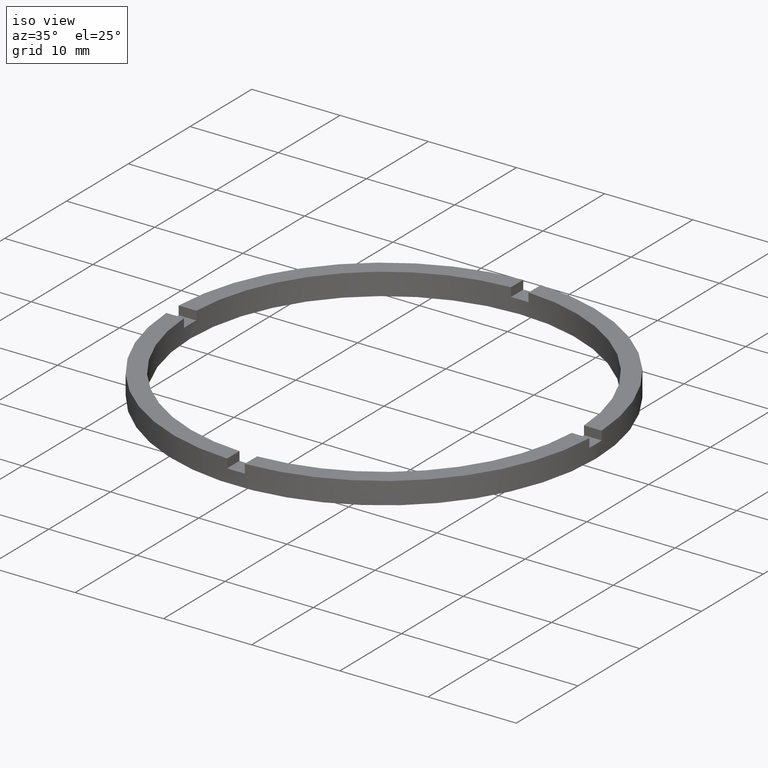
[diagram: clean part render]
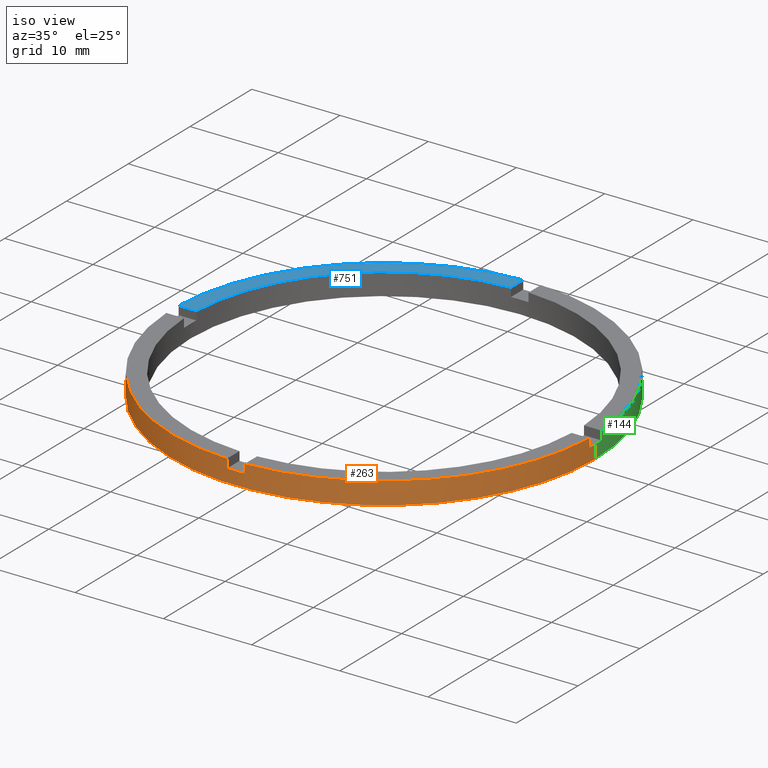
[diagram: same view with three faces highlighted in distinct colors, each labeled with its STEP entity id]
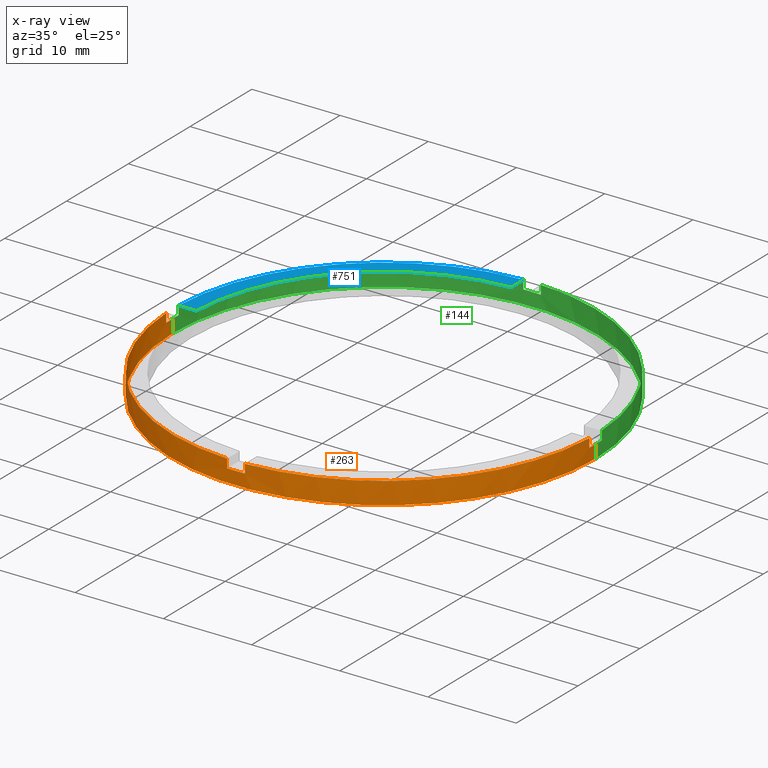
[diagram: x-ray of the same camera — body ghosted, the three highlighted faces saturated]
A machine part, iso view with three faces highlighted in distinct colors.
The next image is the same camera in x-ray (body ghosted, the three faces saturated) — at least one of them is partly hidden behind the body in this view.
Their STEP definitions:

[orange] entity #263 — the highlighted cylindrical surface (partial cylindrical patch) has radius 24 mm, axis along (-0, -0, -1).
#3 = CARTESIAN_POINT ( 'NONE',  ( -23.97915761656360445, -1.000000000000025757, 1.500000000000000000 ) ) ;
#4 = DIRECTION ( 'NONE',  ( 1.000000000000000000, 0.000000000000000000, 0.000000000000000000 ) ) ;
#15 = DIRECTION ( 'NONE',  ( -1.000000000000000000, 0.000000000000000000, 0.000000000000000000 ) ) ;
#20 = VERTEX_POINT ( 'NONE', #619 ) ;
#23 = VERTEX_POINT ( 'NONE', #3 ) ;
#25 = EDGE_LOOP ( 'NONE', ( #179, #390, #568, #711, #429, #437, #61, #478, #290, #676, #55, #783 ) ) ;
#26 = AXIS2_PLACEMENT_3D ( 'NONE', #609, #735, #311 ) ;
#45 = LINE ( 'NONE', #695, #289 ) ;
#55 = ORIENTED_EDGE ( 'NONE', *, *, #641, .T. ) ;
#61 = ORIENTED_EDGE ( 'NONE', *, *, #71, .T. ) ;
#71 = EDGE_CURVE ( 'NONE', #303, #392, #45, .T. ) ;
#78 = LINE ( 'NONE', #170, #337 ) ;
#83 = VECTOR ( 'NONE', #616, 1000.000000000000000 ) ;
#101 = VECTOR ( 'NONE', #581, 1000.000000000000000 ) ;
#104 = CIRCLE ( 'NONE', #462, 24.00000000000000355 ) ;
#138 = CARTESIAN_POINT ( 'NONE',  ( -24.00000000000000355, 0.000000000000000000, 0.000000000000000000 ) ) ;
#158 = EDGE_CURVE ( 'NONE', #564, #23, #361, .T. ) ;
#170 = CARTESIAN_POINT ( 'NONE',  ( 0.9999999999998393507, -23.97915761656361155, 2.500000000000000000 ) ) ;
#172 = DIRECTION ( 'NONE',  ( 0.000000000000000000, 0.000000000000000000, 1.000000000000000000 ) ) ;
#178 = EDGE_CURVE ( 'NONE', #215, #716, #104, .T. ) ;
#179 = ORIENTED_EDGE ( 'NONE', *, *, #536, .F. ) ;
#185 = VERTEX_POINT ( 'NONE', #138 ) ;
#206 = CARTESIAN_POINT ( 'NONE',  ( -23.97915761656360445, -1.000000000000025757, 2.500000000000000000 ) ) ;
#207 = AXIS2_PLACEMENT_3D ( 'NONE', #411, #210, #366 ) ;
#210 = DIRECTION ( 'NONE',  ( 0.000000000000000000, 0.000000000000000000, 1.000000000000000000 ) ) ;
#215 = VERTEX_POINT ( 'NONE', #682 ) ;
#219 = CARTESIAN_POINT ( 'NONE',  ( 0.000000000000000000, 0.000000000000000000, 2.500000000000000000 ) ) ;
#252 = CARTESIAN_POINT ( 'NONE',  ( 0.000000000000000000, 0.000000000000000000, 2.500000000000000000 ) ) ;
#263 = ADVANCED_FACE ( 'NONE', ( #627 ), #360, .T. ) ;
#283 = CARTESIAN_POINT ( 'NONE',  ( -23.97915761656360445, -1.000000000000025757, 2.500000000000000000 ) ) ;
#285 = DIRECTION ( 'NONE',  ( -0.000000000000000000, -0.000000000000000000, -1.000000000000000000 ) ) ;
#287 = EDGE_CURVE ( 'NONE', #185, #389, #358, .T. ) ;
#289 = VECTOR ( 'NONE', #604, 1000.000000000000000 ) ;
#290 = ORIENTED_EDGE ( 'NONE', *, *, #423, .T. ) ;
#300 = AXIS2_PLACEMENT_3D ( 'NONE', #252, #396, #15 ) ;
#303 = VERTEX_POINT ( 'NONE', #734 ) ;
#311 = DIRECTION ( 'NONE',  ( 1.000000000000000000, 0.000000000000000000, 0.000000000000000000 ) ) ;
#330 = CIRCLE ( 'NONE', #207, 24.00000000000000355 ) ;
#331 = CARTESIAN_POINT ( 'NONE',  ( 0.000000000000000000, 0.000000000000000000, 0.000000000000000000 ) ) ;
#337 = VECTOR ( 'NONE', #285, 1000.000000000000000 ) ;
#357 = VECTOR ( 'NONE', #713, 1000.000000000000000 ) ;
#358 = CIRCLE ( 'NONE', #435, 24.00000000000000355 ) ;
#360 = CYLINDRICAL_SURFACE ( 'NONE', #300, 24.00000000000000355 ) ;
#361 = CIRCLE ( 'NONE', #26, 24.00000000000000355 ) ;
#366 = DIRECTION ( 'NONE',  ( 1.000000000000000000, 0.000000000000000000, 0.000000000000000000 ) ) ;
#371 = CARTESIAN_POINT ( 'NONE',  ( -1.000000000000160316, -23.97915761656359379, 2.500000000000000000 ) ) ;
#378 = EDGE_CURVE ( 'NONE', #709, #716, #628, .T. ) ;
#380 = DIRECTION ( 'NONE',  ( -0.000000000000000000, 0.000000000000000000, 1.000000000000000000 ) ) ;
#389 = VERTEX_POINT ( 'NONE', #677 ) ;
#390 = ORIENTED_EDGE ( 'NONE', *, *, #401, .F. ) ;
#392 = VERTEX_POINT ( 'NONE', #371 ) ;
#396 = DIRECTION ( 'NONE',  ( -0.000000000000000000, -0.000000000000000000, -1.000000000000000000 ) ) ;
#401 = EDGE_CURVE ( 'NONE', #709, #481, #330, .T. ) ;
#403 = EDGE_CURVE ( 'NONE', #215, #20, #78, .T. ) ;
#411 = CARTESIAN_POINT ( 'NONE',  ( 0.000000000000000000, 0.000000000000000000, 1.500000000000000000 ) ) ;
#423 = EDGE_CURVE ( 'NONE', #766, #23, #607, .T. ) ;
#429 = ORIENTED_EDGE ( 'NONE', *, *, #403, .T. ) ;
#430 = AXIS2_PLACEMENT_3D ( 'NONE', #219, #172, #457 ) ;
#435 = AXIS2_PLACEMENT_3D ( 'NONE', #331, #562, #684 ) ;
#437 = ORIENTED_EDGE ( 'NONE', *, *, #724, .F. ) ;
#456 = CARTESIAN_POINT ( 'NONE',  ( 0.000000000000000000, 0.000000000000000000, 2.500000000000000000 ) ) ;
#457 = DIRECTION ( 'NONE',  ( 1.000000000000000000, 0.000000000000000000, 0.000000000000000000 ) ) ;
#458 = AXIS2_PLACEMENT_3D ( 'NONE', #540, #380, #4 ) ;
#459 = CARTESIAN_POINT ( 'NONE',  ( 23.97915761656359734, -1.000000000000157652, 2.500000000000000000 ) ) ;
#462 = AXIS2_PLACEMENT_3D ( 'NONE', #456, #623, #680 ) ;
#478 = ORIENTED_EDGE ( 'NONE', *, *, #775, .F. ) ;
#481 = VERTEX_POINT ( 'NONE', #590 ) ;
#501 = CARTESIAN_POINT ( 'NONE',  ( 24.00000000000000355, 2.939152317953648289E-15, 2.500000000000000000 ) ) ;
#536 = EDGE_CURVE ( 'NONE', #481, #389, #621, .T. ) ;
#540 = CARTESIAN_POINT ( 'NONE',  ( 0.000000000000000000, 0.000000000000000000, 1.500000000000000000 ) ) ;
#550 = CARTESIAN_POINT ( 'NONE',  ( -24.00000000000000355, 0.000000000000000000, 1.500000000000000000 ) ) ;
#559 = CARTESIAN_POINT ( 'NONE',  ( -24.00000000000000355, 0.000000000000000000, 2.500000000000000000 ) ) ;
#562 = DIRECTION ( 'NONE',  ( 0.000000000000000000, 0.000000000000000000, 1.000000000000000000 ) ) ;
#564 = VERTEX_POINT ( 'NONE', #550 ) ;
#568 = ORIENTED_EDGE ( 'NONE', *, *, #378, .T. ) ;
#581 = DIRECTION ( 'NONE',  ( -0.000000000000000000, -0.000000000000000000, -1.000000000000000000 ) ) ;
#590 = CARTESIAN_POINT ( 'NONE',  ( 24.00000000000000355, 2.939152317953648289E-15, 1.500000000000000000 ) ) ;
#604 = DIRECTION ( 'NONE',  ( 0.000000000000000000, 0.000000000000000000, 1.000000000000000000 ) ) ;
#607 = LINE ( 'NONE', #283, #357 ) ;
#609 = CARTESIAN_POINT ( 'NONE',  ( 0.000000000000000000, 0.000000000000000000, 1.500000000000000000 ) ) ;
#616 = DIRECTION ( 'NONE',  ( 0.000000000000000000, 0.000000000000000000, 1.000000000000000000 ) ) ;
#619 = CARTESIAN_POINT ( 'NONE',  ( 0.9999999999998389066, -23.97915761656360800, 1.500000000000000000 ) ) ;
#621 = LINE ( 'NONE', #501, #101 ) ;
#623 = DIRECTION ( 'NONE',  ( 0.000000000000000000, 0.000000000000000000, 1.000000000000000000 ) ) ;
#626 = CARTESIAN_POINT ( 'NONE',  ( 23.97915761656359734, -1.000000000000157652, 1.500000000000000000 ) ) ;
#627 = FACE_OUTER_BOUND ( 'NONE', #25, .T. ) ;
#628 = LINE ( 'NONE', #459, #83 ) ;
#632 = LINE ( 'NONE', #559, #643 ) ;
#641 = EDGE_CURVE ( 'NONE', #564, #185, #632, .T. ) ;
#643 = VECTOR ( 'NONE', #697, 1000.000000000000000 ) ;
#676 = ORIENTED_EDGE ( 'NONE', *, *, #158, .F. ) ;
#677 = CARTESIAN_POINT ( 'NONE',  ( 24.00000000000000355, 2.939152317953648289E-15, 0.000000000000000000 ) ) ;
#680 = DIRECTION ( 'NONE',  ( 1.000000000000000000, 0.000000000000000000, 0.000000000000000000 ) ) ;
#681 = CARTESIAN_POINT ( 'NONE',  ( 23.97915761656359734, -1.000000000000157652, 2.500000000000000000 ) ) ;
#682 = CARTESIAN_POINT ( 'NONE',  ( 0.9999999999998389066, -23.97915761656360800, 2.500000000000000000 ) ) ;
#684 = DIRECTION ( 'NONE',  ( 1.000000000000000000, 0.000000000000000000, 0.000000000000000000 ) ) ;
#695 = CARTESIAN_POINT ( 'NONE',  ( -1.000000000000160760, -23.97915761656359734, 2.500000000000000000 ) ) ;
#697 = DIRECTION ( 'NONE',  ( -0.000000000000000000, -0.000000000000000000, -1.000000000000000000 ) ) ;
#709 = VERTEX_POINT ( 'NONE', #626 ) ;
#711 = ORIENTED_EDGE ( 'NONE', *, *, #178, .F. ) ;
#713 = DIRECTION ( 'NONE',  ( -0.000000000000000000, -0.000000000000000000, -1.000000000000000000 ) ) ;
#716 = VERTEX_POINT ( 'NONE', #681 ) ;
#724 = EDGE_CURVE ( 'NONE', #303, #20, #773, .T. ) ;
#734 = CARTESIAN_POINT ( 'NONE',  ( -1.000000000000160316, -23.97915761656359379, 1.500000000000000000 ) ) ;
#735 = DIRECTION ( 'NONE',  ( 0.000000000000000000, 0.000000000000000000, 1.000000000000000000 ) ) ;
#766 = VERTEX_POINT ( 'NONE', #206 ) ;
#773 = CIRCLE ( 'NONE', #458, 24.00000000000000355 ) ;
#775 = EDGE_CURVE ( 'NONE', #766, #392, #781, .T. ) ;
#781 = CIRCLE ( 'NONE', #430, 24.00000000000000355 ) ;
#783 = ORIENTED_EDGE ( 'NONE', *, *, #287, .T. ) ;

[blue] entity #751 — the highlighted planar face has unit normal (0, 0, 1).
#10 = ORIENTED_EDGE ( 'NONE', *, *, #432, .T. ) ;
#27 = CARTESIAN_POINT ( 'NONE',  ( -1.000000000000025535, 21.97726097583590388, 2.500000000000000000 ) ) ;
#31 = EDGE_CURVE ( 'NONE', #273, #410, #32, .T. ) ;
#32 = CIRCLE ( 'NONE', #208, 22.00000000000000000 ) ;
#85 = CIRCLE ( 'NONE', #557, 24.00000000000000355 ) ;
#112 = DIRECTION ( 'NONE',  ( -1.000000000000000000, -1.734723475976806848E-16, 0.000000000000000000 ) ) ;
#115 = VECTOR ( 'NONE', #112, 1000.000000000000000 ) ;
#126 = CARTESIAN_POINT ( 'NONE',  ( 0.000000000000000000, 0.000000000000000000, 2.500000000000000000 ) ) ;
#127 = CARTESIAN_POINT ( 'NONE',  ( 0.000000000000000000, 0.000000000000000000, 2.500000000000000000 ) ) ;
#208 = AXIS2_PLACEMENT_3D ( 'NONE', #778, #444, #281 ) ;
#226 = CARTESIAN_POINT ( 'NONE',  ( -1.000000000000025535, 23.97915761656360090, 2.500000000000000000 ) ) ;
#236 = DIRECTION ( 'NONE',  ( 0.000000000000000000, 0.000000000000000000, 1.000000000000000000 ) ) ;
#238 = CARTESIAN_POINT ( 'NONE',  ( -1.000000000000025979, 14.00000000000000355, 2.500000000000000000 ) ) ;
#273 = VERTEX_POINT ( 'NONE', #27 ) ;
#281 = DIRECTION ( 'NONE',  ( 1.000000000000000000, 0.000000000000000000, 0.000000000000000000 ) ) ;
#301 = ORIENTED_EDGE ( 'NONE', *, *, #31, .F. ) ;
#313 = DIRECTION ( 'NONE',  ( 1.000000000000000000, 0.000000000000000000, 0.000000000000000000 ) ) ;
#352 = AXIS2_PLACEMENT_3D ( 'NONE', #126, #726, #355 ) ;
#355 = DIRECTION ( 'NONE',  ( 1.000000000000000000, 0.000000000000000000, -0.000000000000000000 ) ) ;
#356 = LINE ( 'NONE', #238, #637 ) ;
#391 = VERTEX_POINT ( 'NONE', #226 ) ;
#393 = CARTESIAN_POINT ( 'NONE',  ( -14.00000000000019007, 0.9999999999999759082, 2.500000000000000000 ) ) ;
#410 = VERTEX_POINT ( 'NONE', #603 ) ;
#416 = PLANE ( 'NONE',  #352 ) ;
#432 = EDGE_CURVE ( 'NONE', #391, #750, #85, .T. ) ;
#444 = DIRECTION ( 'NONE',  ( 0.000000000000000000, 0.000000000000000000, 1.000000000000000000 ) ) ;
#502 = ORIENTED_EDGE ( 'NONE', *, *, #703, .F. ) ;
#506 = FACE_OUTER_BOUND ( 'NONE', #665, .T. ) ;
#542 = EDGE_CURVE ( 'NONE', #391, #273, #356, .T. ) ;
#545 = DIRECTION ( 'NONE',  ( -0.000000000000000000, -1.000000000000000000, -0.000000000000000000 ) ) ;
#557 = AXIS2_PLACEMENT_3D ( 'NONE', #127, #236, #313 ) ;
#603 = CARTESIAN_POINT ( 'NONE',  ( -21.97726097583591098, 0.9999999999999744649, 2.500000000000000000 ) ) ;
#635 = LINE ( 'NONE', #393, #115 ) ;
#637 = VECTOR ( 'NONE', #545, 1000.000000000000000 ) ;
#665 = EDGE_LOOP ( 'NONE', ( #722, #10, #502, #301 ) ) ;
#703 = EDGE_CURVE ( 'NONE', #410, #750, #635, .T. ) ;
#722 = ORIENTED_EDGE ( 'NONE', *, *, #542, .F. ) ;
#726 = DIRECTION ( 'NONE',  ( 0.000000000000000000, 0.000000000000000000, 1.000000000000000000 ) ) ;
#750 = VERTEX_POINT ( 'NONE', #779 ) ;
#751 = ADVANCED_FACE ( 'NONE', ( #506 ), #416, .T. ) ;
#778 = CARTESIAN_POINT ( 'NONE',  ( 0.000000000000000000, 0.000000000000000000, 2.500000000000000000 ) ) ;
#779 = CARTESIAN_POINT ( 'NONE',  ( -23.97915761656360445, 0.9999999999999742428, 2.500000000000000000 ) ) ;

[green] entity #144 — the highlighted cylindrical surface (partial cylindrical patch) has radius 24 mm, axis along (-0, -0, -1).
#5 = ORIENTED_EDGE ( 'NONE', *, *, #163, .F. ) ;
#6 = ORIENTED_EDGE ( 'NONE', *, *, #497, .F. ) ;
#9 = CARTESIAN_POINT ( 'NONE',  ( 0.000000000000000000, 0.000000000000000000, 1.500000000000000000 ) ) ;
#14 = AXIS2_PLACEMENT_3D ( 'NONE', #671, #727, #461 ) ;
#37 = DIRECTION ( 'NONE',  ( 1.000000000000000000, 0.000000000000000000, 0.000000000000000000 ) ) ;
#38 = ORIENTED_EDGE ( 'NONE', *, *, #746, .F. ) ;
#54 = AXIS2_PLACEMENT_3D ( 'NONE', #133, #177, #306 ) ;
#63 = DIRECTION ( 'NONE',  ( 0.000000000000000000, 0.000000000000000000, 1.000000000000000000 ) ) ;
#76 = CIRCLE ( 'NONE', #651, 24.00000000000000355 ) ;
#81 = CIRCLE ( 'NONE', #14, 24.00000000000000355 ) ;
#84 = DIRECTION ( 'NONE',  ( 1.000000000000000000, 0.000000000000000000, 0.000000000000000000 ) ) ;
#85 = CIRCLE ( 'NONE', #557, 24.00000000000000355 ) ;
#87 = VECTOR ( 'NONE', #741, 1000.000000000000000 ) ;
#90 = CIRCLE ( 'NONE', #196, 24.00000000000000355 ) ;
#92 = CIRCLE ( 'NONE', #730, 24.00000000000000355 ) ;
#100 = CARTESIAN_POINT ( 'NONE',  ( 23.97915761656361155, 0.9999999999998423483, 1.500000000000000000 ) ) ;
#101 = VECTOR ( 'NONE', #581, 1000.000000000000000 ) ;
#102 = VECTOR ( 'NONE', #165, 1000.000000000000000 ) ;
#103 = LINE ( 'NONE', #689, #87 ) ;
#127 = CARTESIAN_POINT ( 'NONE',  ( 0.000000000000000000, 0.000000000000000000, 2.500000000000000000 ) ) ;
#133 = CARTESIAN_POINT ( 'NONE',  ( 0.000000000000000000, 0.000000000000000000, 1.500000000000000000 ) ) ;
#138 = CARTESIAN_POINT ( 'NONE',  ( -24.00000000000000355, 0.000000000000000000, 0.000000000000000000 ) ) ;
#142 = DIRECTION ( 'NONE',  ( -1.000000000000000000, 0.000000000000000000, 0.000000000000000000 ) ) ;
#143 = EDGE_LOOP ( 'NONE', ( #271, #558, #538, #535, #38, #304, #516, #428, #6, #512, #5, #518 ) ) ;
#144 = ADVANCED_FACE ( 'NONE', ( #578 ), #580, .T. ) ;
#148 = DIRECTION ( 'NONE',  ( 1.000000000000000000, 0.000000000000000000, 0.000000000000000000 ) ) ;
#152 = DIRECTION ( 'NONE',  ( 0.000000000000000000, 0.000000000000000000, 1.000000000000000000 ) ) ;
#155 = CARTESIAN_POINT ( 'NONE',  ( 0.9999999999999735767, 23.97915761656360090, 2.500000000000000000 ) ) ;
#163 = EDGE_CURVE ( 'NONE', #747, #552, #81, .T. ) ;
#165 = DIRECTION ( 'NONE',  ( -0.000000000000000000, -0.000000000000000000, -1.000000000000000000 ) ) ;
#168 = EDGE_CURVE ( 'NONE', #389, #185, #92, .T. ) ;
#176 = DIRECTION ( 'NONE',  ( -0.000000000000000000, -0.000000000000000000, -1.000000000000000000 ) ) ;
#177 = DIRECTION ( 'NONE',  ( 0.000000000000000000, 0.000000000000000000, 1.000000000000000000 ) ) ;
#185 = VERTEX_POINT ( 'NONE', #138 ) ;
#196 = AXIS2_PLACEMENT_3D ( 'NONE', #708, #701, #37 ) ;
#209 = CARTESIAN_POINT ( 'NONE',  ( -1.000000000000025979, 23.97915761656360445, 2.500000000000000000 ) ) ;
#221 = EDGE_CURVE ( 'NONE', #481, #583, #76, .T. ) ;
#226 = CARTESIAN_POINT ( 'NONE',  ( -1.000000000000025535, 23.97915761656360090, 2.500000000000000000 ) ) ;
#229 = DIRECTION ( 'NONE',  ( 0.000000000000000000, 0.000000000000000000, 1.000000000000000000 ) ) ;
#234 = CARTESIAN_POINT ( 'NONE',  ( -23.97915761656360445, 0.9999999999999742428, 2.500000000000000000 ) ) ;
#236 = DIRECTION ( 'NONE',  ( 0.000000000000000000, 0.000000000000000000, 1.000000000000000000 ) ) ;
#261 = EDGE_CURVE ( 'NONE', #757, #552, #103, .T. ) ;
#271 = ORIENTED_EDGE ( 'NONE', *, *, #221, .F. ) ;
#275 = CARTESIAN_POINT ( 'NONE',  ( -23.97915761656360445, 0.9999999999999742428, 1.500000000000000000 ) ) ;
#278 = CARTESIAN_POINT ( 'NONE',  ( -1.000000000000025535, 23.97915761656360090, 1.500000000000000000 ) ) ;
#282 = CARTESIAN_POINT ( 'NONE',  ( 0.9999999999999735767, 23.97915761656360090, 1.500000000000000000 ) ) ;
#304 = ORIENTED_EDGE ( 'NONE', *, *, #737, .T. ) ;
#306 = DIRECTION ( 'NONE',  ( 1.000000000000000000, 0.000000000000000000, 0.000000000000000000 ) ) ;
#313 = DIRECTION ( 'NONE',  ( 1.000000000000000000, 0.000000000000000000, 0.000000000000000000 ) ) ;
#365 = DIRECTION ( 'NONE',  ( -0.000000000000000000, -0.000000000000000000, -1.000000000000000000 ) ) ;
#377 = CARTESIAN_POINT ( 'NONE',  ( 23.97915761656361155, 0.9999999999998423483, 2.500000000000000000 ) ) ;
#381 = AXIS2_PLACEMENT_3D ( 'NONE', #415, #176, #142 ) ;
#389 = VERTEX_POINT ( 'NONE', #677 ) ;
#391 = VERTEX_POINT ( 'NONE', #226 ) ;
#415 = CARTESIAN_POINT ( 'NONE',  ( 0.000000000000000000, 0.000000000000000000, 2.500000000000000000 ) ) ;
#428 = ORIENTED_EDGE ( 'NONE', *, *, #460, .T. ) ;
#432 = EDGE_CURVE ( 'NONE', #391, #750, #85, .T. ) ;
#449 = CARTESIAN_POINT ( 'NONE',  ( 23.97915761656361155, 0.9999999999998423483, 2.500000000000000000 ) ) ;
#460 = EDGE_CURVE ( 'NONE', #391, #531, #610, .T. ) ;
#461 = DIRECTION ( 'NONE',  ( 1.000000000000000000, 0.000000000000000000, 0.000000000000000000 ) ) ;
#477 = VECTOR ( 'NONE', #229, 1000.000000000000000 ) ;
#479 = LINE ( 'NONE', #234, #477 ) ;
#481 = VERTEX_POINT ( 'NONE', #590 ) ;
#486 = CIRCLE ( 'NONE', #54, 24.00000000000000355 ) ;
#489 = EDGE_CURVE ( 'NONE', #747, #583, #611, .T. ) ;
#497 = EDGE_CURVE ( 'NONE', #757, #531, #90, .T. ) ;
#501 = CARTESIAN_POINT ( 'NONE',  ( 24.00000000000000355, 2.939152317953648289E-15, 2.500000000000000000 ) ) ;
#512 = ORIENTED_EDGE ( 'NONE', *, *, #261, .T. ) ;
#516 = ORIENTED_EDGE ( 'NONE', *, *, #432, .F. ) ;
#518 = ORIENTED_EDGE ( 'NONE', *, *, #489, .T. ) ;
#531 = VERTEX_POINT ( 'NONE', #278 ) ;
#535 = ORIENTED_EDGE ( 'NONE', *, *, #641, .F. ) ;
#536 = EDGE_CURVE ( 'NONE', #481, #389, #621, .T. ) ;
#538 = ORIENTED_EDGE ( 'NONE', *, *, #168, .T. ) ;
#550 = CARTESIAN_POINT ( 'NONE',  ( -24.00000000000000355, 0.000000000000000000, 1.500000000000000000 ) ) ;
#552 = VERTEX_POINT ( 'NONE', #155 ) ;
#557 = AXIS2_PLACEMENT_3D ( 'NONE', #127, #236, #313 ) ;
#558 = ORIENTED_EDGE ( 'NONE', *, *, #536, .T. ) ;
#559 = CARTESIAN_POINT ( 'NONE',  ( -24.00000000000000355, 0.000000000000000000, 2.500000000000000000 ) ) ;
#564 = VERTEX_POINT ( 'NONE', #550 ) ;
#578 = FACE_OUTER_BOUND ( 'NONE', #143, .T. ) ;
#580 = CYLINDRICAL_SURFACE ( 'NONE', #381, 24.00000000000000355 ) ;
#581 = DIRECTION ( 'NONE',  ( -0.000000000000000000, -0.000000000000000000, -1.000000000000000000 ) ) ;
#583 = VERTEX_POINT ( 'NONE', #100 ) ;
#590 = CARTESIAN_POINT ( 'NONE',  ( 24.00000000000000355, 2.939152317953648289E-15, 1.500000000000000000 ) ) ;
#610 = LINE ( 'NONE', #209, #620 ) ;
#611 = LINE ( 'NONE', #449, #102 ) ;
#620 = VECTOR ( 'NONE', #365, 1000.000000000000000 ) ;
#621 = LINE ( 'NONE', #501, #101 ) ;
#632 = LINE ( 'NONE', #559, #643 ) ;
#641 = EDGE_CURVE ( 'NONE', #564, #185, #632, .T. ) ;
#643 = VECTOR ( 'NONE', #697, 1000.000000000000000 ) ;
#651 = AXIS2_PLACEMENT_3D ( 'NONE', #9, #152, #148 ) ;
#671 = CARTESIAN_POINT ( 'NONE',  ( 0.000000000000000000, 0.000000000000000000, 2.500000000000000000 ) ) ;
#677 = CARTESIAN_POINT ( 'NONE',  ( 24.00000000000000355, 2.939152317953648289E-15, 0.000000000000000000 ) ) ;
#689 = CARTESIAN_POINT ( 'NONE',  ( 0.9999999999999740208, 23.97915761656360445, 2.500000000000000000 ) ) ;
#697 = DIRECTION ( 'NONE',  ( -0.000000000000000000, -0.000000000000000000, -1.000000000000000000 ) ) ;
#701 = DIRECTION ( 'NONE',  ( 0.000000000000000000, -0.000000000000000000, 1.000000000000000000 ) ) ;
#708 = CARTESIAN_POINT ( 'NONE',  ( 0.000000000000000000, 0.000000000000000000, 1.500000000000000000 ) ) ;
#717 = CARTESIAN_POINT ( 'NONE',  ( 0.000000000000000000, 0.000000000000000000, 0.000000000000000000 ) ) ;
#727 = DIRECTION ( 'NONE',  ( 0.000000000000000000, 0.000000000000000000, 1.000000000000000000 ) ) ;
#730 = AXIS2_PLACEMENT_3D ( 'NONE', #717, #63, #84 ) ;
#737 = EDGE_CURVE ( 'NONE', #780, #750, #479, .T. ) ;
#741 = DIRECTION ( 'NONE',  ( 0.000000000000000000, 0.000000000000000000, 1.000000000000000000 ) ) ;
#746 = EDGE_CURVE ( 'NONE', #780, #564, #486, .T. ) ;
#747 = VERTEX_POINT ( 'NONE', #377 ) ;
#750 = VERTEX_POINT ( 'NONE', #779 ) ;
#757 = VERTEX_POINT ( 'NONE', #282 ) ;
#779 = CARTESIAN_POINT ( 'NONE',  ( -23.97915761656360445, 0.9999999999999742428, 2.500000000000000000 ) ) ;
#780 = VERTEX_POINT ( 'NONE', #275 ) ;